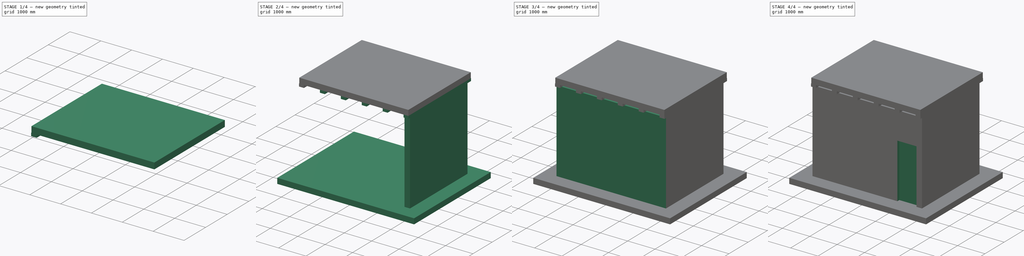
[diagram: build sequence overview — one tinted view per stage of 4, left to right]
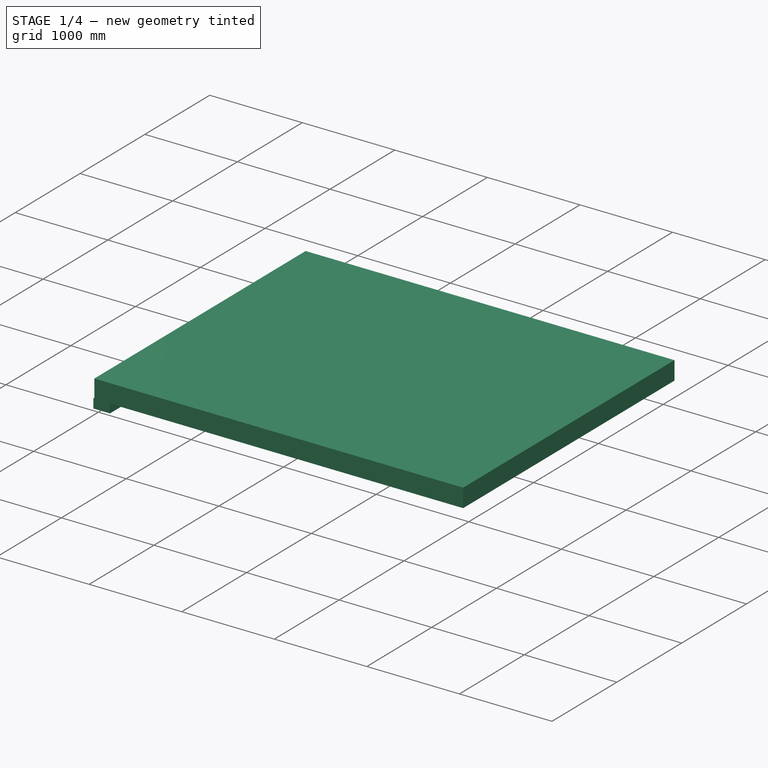
[diagram: stage 1 of 4 — iso view after this stage's code; geometry added in this stage tinted green]
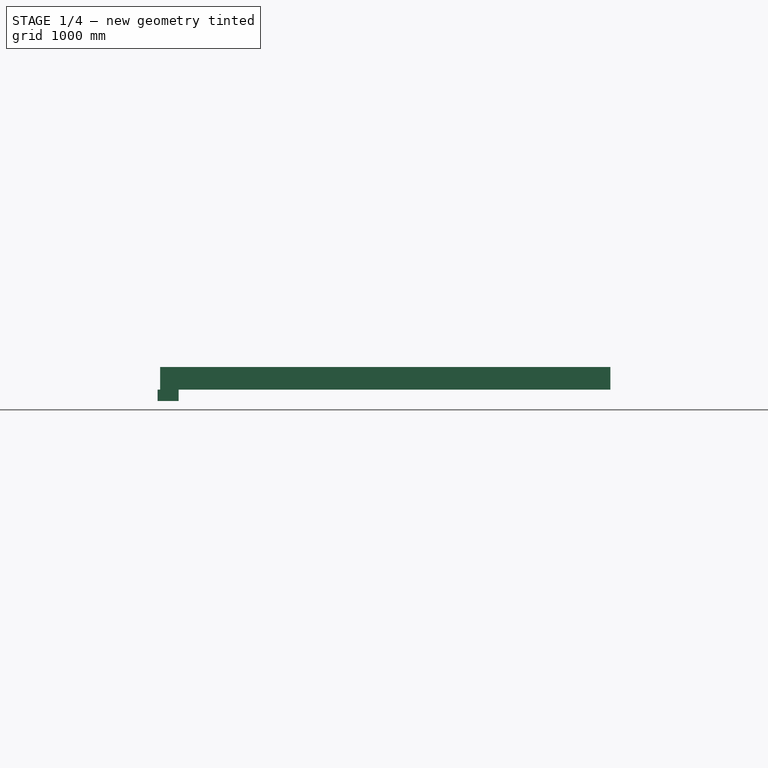
[diagram: stage 1 of 4 — front view after this stage's code; geometry added in this stage tinted green]
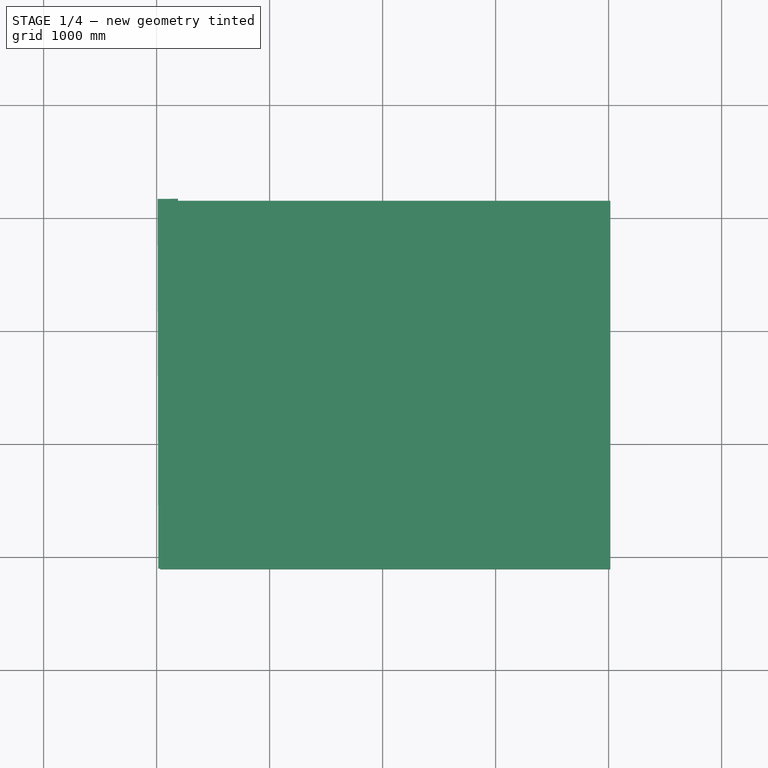
[diagram: stage 1 of 4 — top view after this stage's code; geometry added in this stage tinted green]
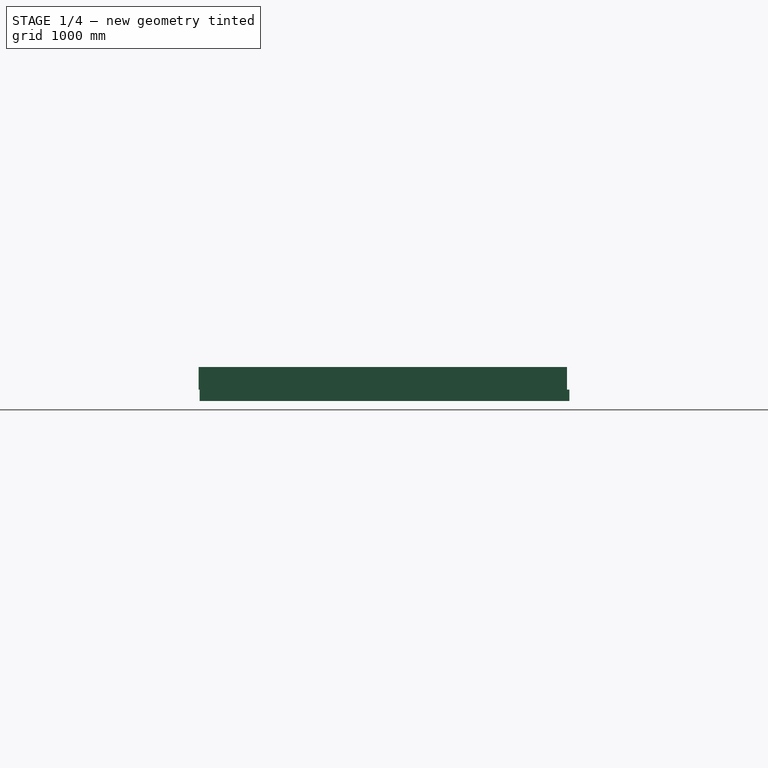
[diagram: stage 1 of 4 — right view after this stage's code; geometry added in this stage tinted green]
FCSTD DOCUMENT  (FreeCAD 0.21R33771 (Git))
Label: bim house mannual
License: All rights reserved
LicenseURL: http://en.wikipedia.org/wiki/All_rights_reserved
objects: Part::FeaturePython×9, Part::Part2DObjectPython×6, Sketcher::SketchObject×1, Part::MultiFuse×1
note: 16 computed .brp shape members not serialized (recipe doc carries the construction recipe); baked Part::Feature solids carry a one-line shape summary decoded from their .brp

FEATURE [Part::FeaturePython] Structure001  label="Beam"  # Arch/BIM 7 (typed FeaturePython)
  BaseMirror = false
  BaseOffsetX = 0
  BaseOffsetY = 0
  BasePerpendicularToTool = false
  BaseRotation = 0
  ComputedLength = 3271.55
  FaceMaker = 0
  Height = 100
  HorizontalArea = 588879
  IfcData = attributes={"GlobalId": {"name": "GlobalId", "type": "IfcGloballyUniqueId", "is_enum": false, "enum_values": []}, "Description": {"... (+475 chars omitted),+1 more (map truncated)
  IfcType = 7
  Length = 3271.55
  MoveBase = false
  MoveWithHost = false
  Nodes = (2) [(-6.47112e-32,-5.68434e-16,-3.88578e-16),(3271.55,-5.68434e-16,-7.26819e-13)]
  NodesOffset = 0
  Normal = (0,0,0)
  PerimeterLength = 6903.1
  Placement = pos=(105,-100,3050) rot=(0,0,1;1.57272rad)
  PredefinedType = 0
  ToolOffsetFirst = 0
  ToolOffsetLast = 0
  VerticalArea = 690310
  Width = 180
FEATURE [Part::Part2DObjectPython] Rectangle001  # Draft 2D object (typed FeaturePython)
  Area = 1.29869e+07
  ChamferSize = 0
  Columns = 1
  FilletRadius = 0
  Height = 3259.7
  Length = 3984.08
  MakeFace = true
  Placement = pos=(31.4911,-108.211,0) rot=(0,0,1;0rad)
  Rows = 1
FEATURE [Part::FeaturePython] Structure002  # Arch/BIM 13 (typed FeaturePython)
  Base = -> Rectangle001
  BaseMirror = false
  BaseOffsetX = 0
  BaseOffsetY = 0
  BasePerpendicularToTool = false
  BaseRotation = 0
  ComputedLength = 200
  FaceMaker = 0
  Height = 200
  HorizontalArea = 1.29869e+07
  IfcData = attributes={"GlobalId": {"name": "GlobalId", "type": "IfcGloballyUniqueId", "is_enum": false, "enum_values": []}, "Description": {"... (+484 chars omitted),+1 more (map truncated)
  IfcType = 13
  Length = 0
  MoveBase = false
  MoveWithHost = false
  Nodes = (2) [(2023.53,1521.64,0),(2023.53,1521.64,200)]
  NodesOffset = 0
  Normal = (0,0,0)
  PerimeterLength = 14487.6
  Placement = pos=(0,0,3100) rot=(0,0,1;0rad)
  PredefinedType = 0
  ToolOffsetFirst = 0
  ToolOffsetLast = 0
  VerticalArea = 2.89751e+06
  Width = 180
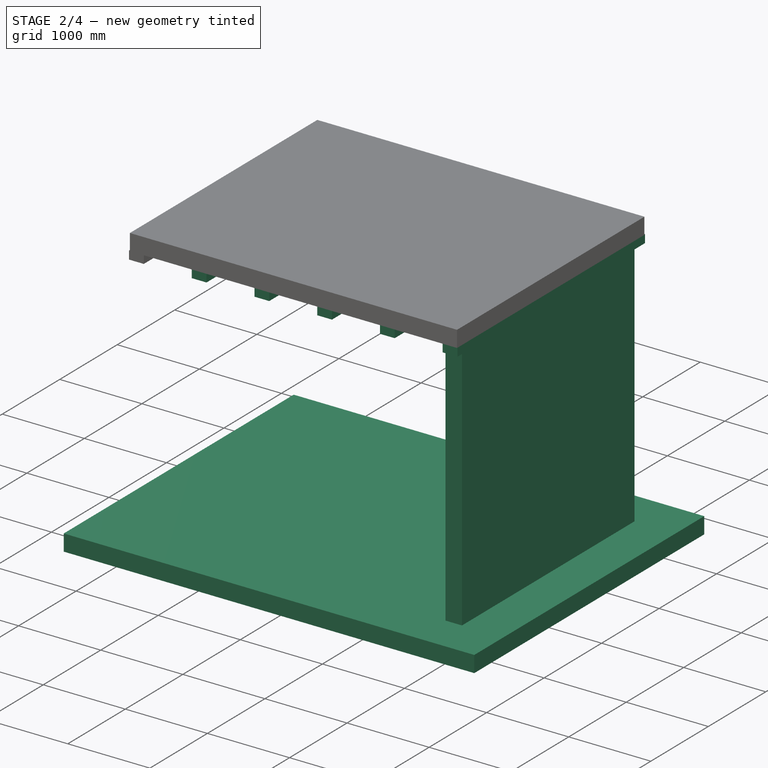
[diagram: stage 2 of 4 — iso view after this stage's code; geometry added in this stage tinted green]
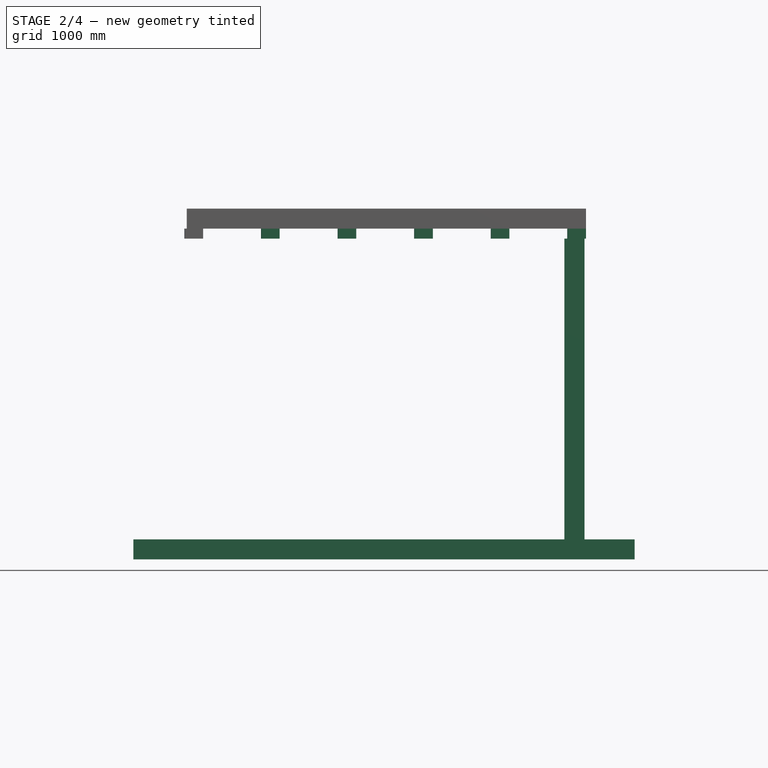
[diagram: stage 2 of 4 — front view after this stage's code; geometry added in this stage tinted green]
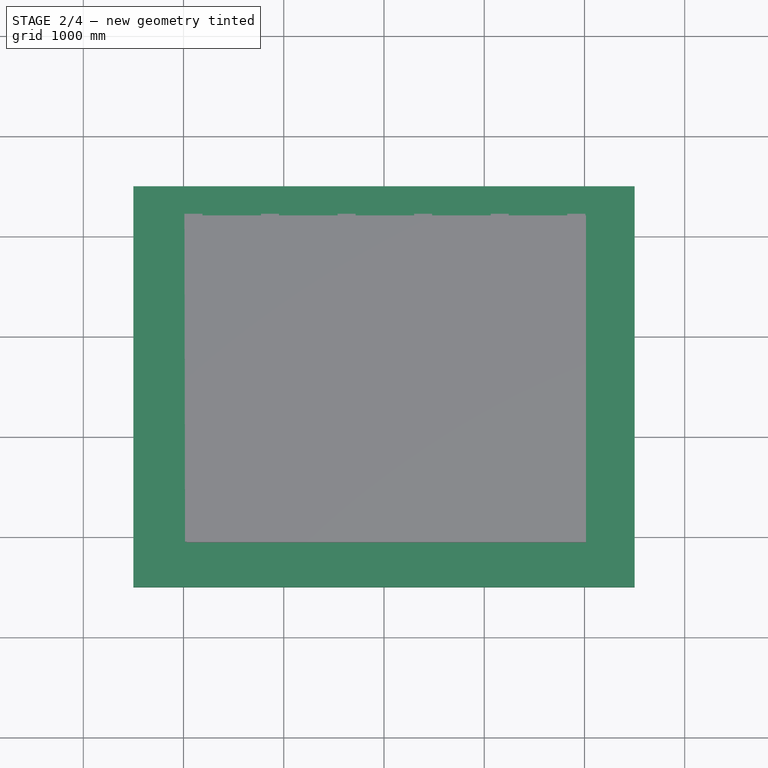
[diagram: stage 2 of 4 — top view after this stage's code; geometry added in this stage tinted green]
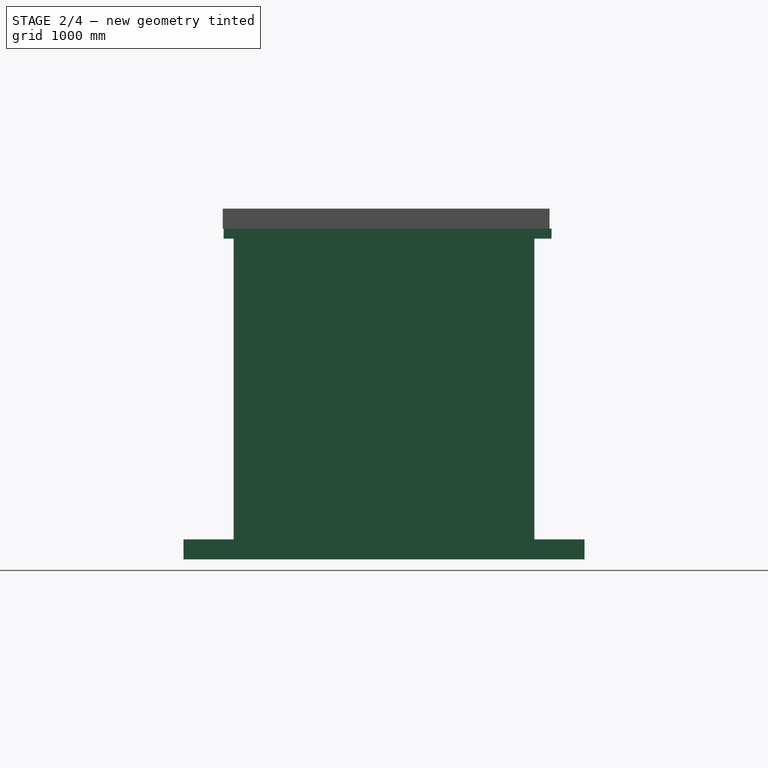
[diagram: stage 2 of 4 — right view after this stage's code; geometry added in this stage tinted green]
FEATURE [Part::FeaturePython] Wall002  # Arch/BIM 166 (typed FeaturePython)
  Align = 0
  Area = 9000000
  Base = -> Line002
  BlockHeight = 0
  BlockLength = 0
  CountBroken = 0
  CountEntire = 0
  Face = 0
  Height = 3000
  HorizontalArea = 600000
  IfcData = attributes={"GlobalId": {"name": "GlobalId", "type": "IfcGloballyUniqueId", "is_enum": false, "enum_values": []}, "Description": {"... (+533 chars omitted),+1 more (map truncated)
  IfcType = 166
  Joint = 0
  Length = 3000
  MakeBlocks = false
  MoveBase = false
  MoveWithHost = false
  Normal = (0,0,0)
  OffsetFirst = 0
  OffsetSecond = 0
  PerimeterLength = 6400
  PredefinedType = 0
  VerticalArea = 19200000
  Width = 200
FEATURE [Part::Part2DObjectPython] Rectangle  # Draft 2D object (typed FeaturePython)
  Area = 20000000
  ChamferSize = 0
  Columns = 1
  FilletRadius = 0
  Height = 4000
  Length = 5000
  MakeFace = true
  Placement = pos=(-500,-500,0) rot=(0,0,1;0rad)
  Rows = 1
FEATURE [Part::FeaturePython] Structure  # Arch/BIM 13 (typed FeaturePython)
  Base = -> Rectangle
  BaseMirror = false
  BaseOffsetX = 0
  BaseOffsetY = 0
  BasePerpendicularToTool = false
  BaseRotation = 0
  ComputedLength = 200
  FaceMaker = 0
  Height = 200
  HorizontalArea = 20000000
  IfcData = attributes={"GlobalId": {"name": "GlobalId", "type": "IfcGloballyUniqueId", "is_enum": false, "enum_values": []}, "Description": {"... (+484 chars omitted),+1 more (map truncated)
  IfcType = 13
  Length = 0
  MoveBase = false
  MoveWithHost = false
  Nodes = (2) [(2000,1500,0),(2000,1500,-200)]
  NodesOffset = 0
  Normal = (0,0,-1)
  PerimeterLength = 18000
  PredefinedType = 0
  ToolOffsetFirst = 0
  ToolOffsetLast = 0
  VerticalArea = 3600000
  Width = 100
FEATURE [Part::FeaturePython] Array  # Draft array (typed FeaturePython)
  AlwaysSyncPlacement = false
  Angle = 360
  ArrayType = 0
  Axis = (0,0,1)
  Base = -> Structure001
  Center = (0,0,0)
  Count = 6
  ExpandArray = false
  Fuse = false
  IntervalAxis = (0,0,0)
  IntervalX = (764,0,0)
  IntervalY = (0,100,0)
  IntervalZ = (0,0,100)
  NumberCircles = 3
  NumberPolar = 5
  NumberX = 6
  NumberY = 1
  NumberZ = 1
  PlacementList = 6 placements: arithmetic series from (105,-100,3050) step (764,0,0) to (3925,-100,3050)
  RadialDistance = 50
  ScaleList = (6) [(1,1,1),(1,1,1),(1,1,1),(1,1,1),(1,1,1),(1,1,1)]
  Symmetry = 1
  TangentialDistance = 25
  expr: .IntervalX.x = 764 mm
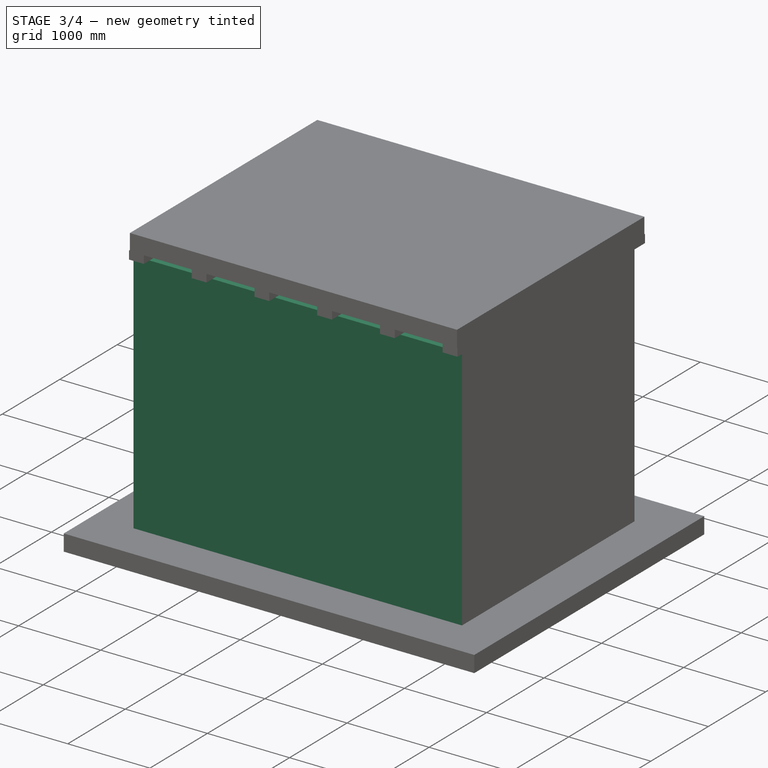
[diagram: stage 3 of 4 — iso view after this stage's code; geometry added in this stage tinted green]
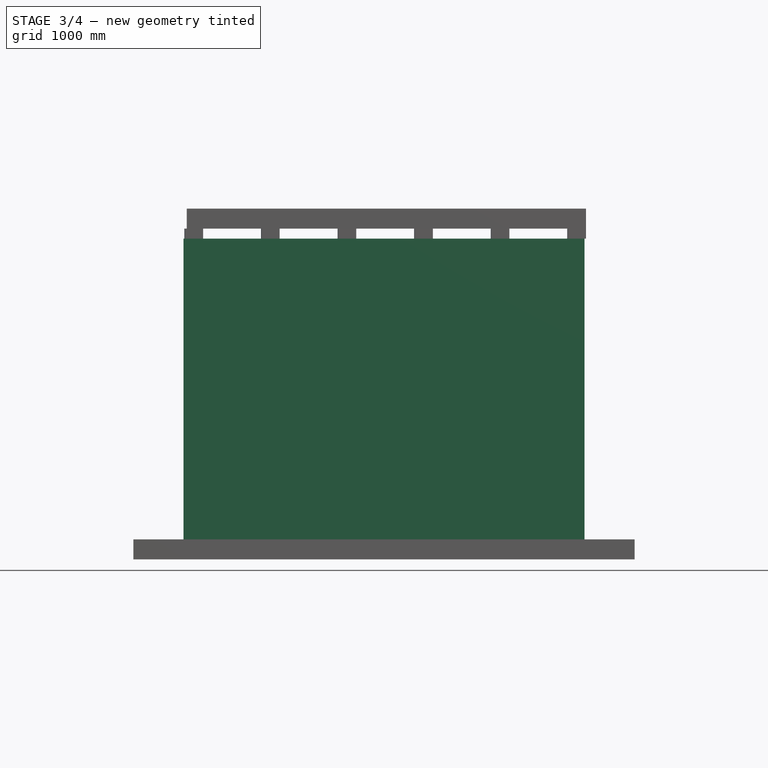
[diagram: stage 3 of 4 — front view after this stage's code; geometry added in this stage tinted green]
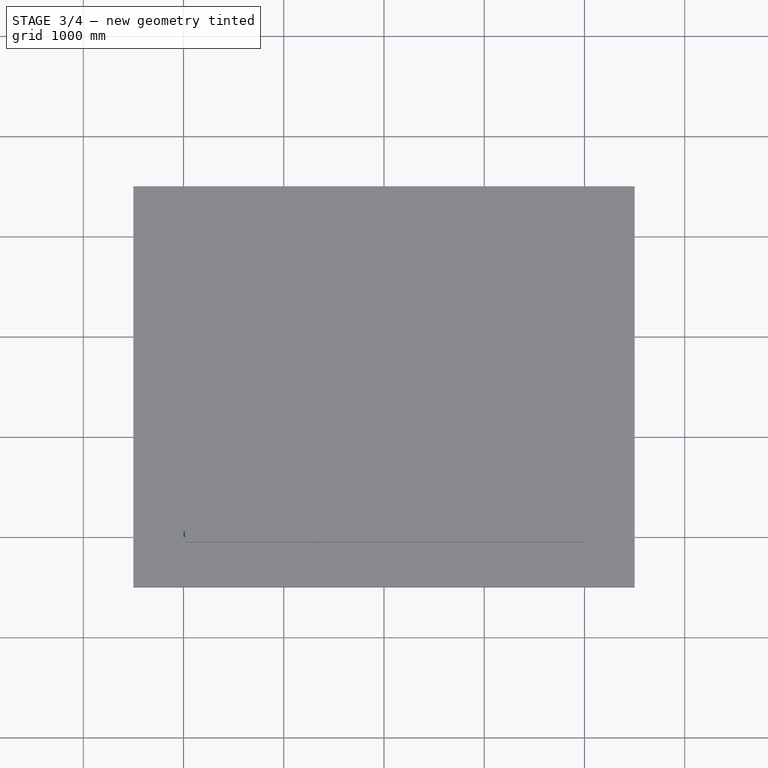
[diagram: stage 3 of 4 — top view after this stage's code; geometry added in this stage tinted green]
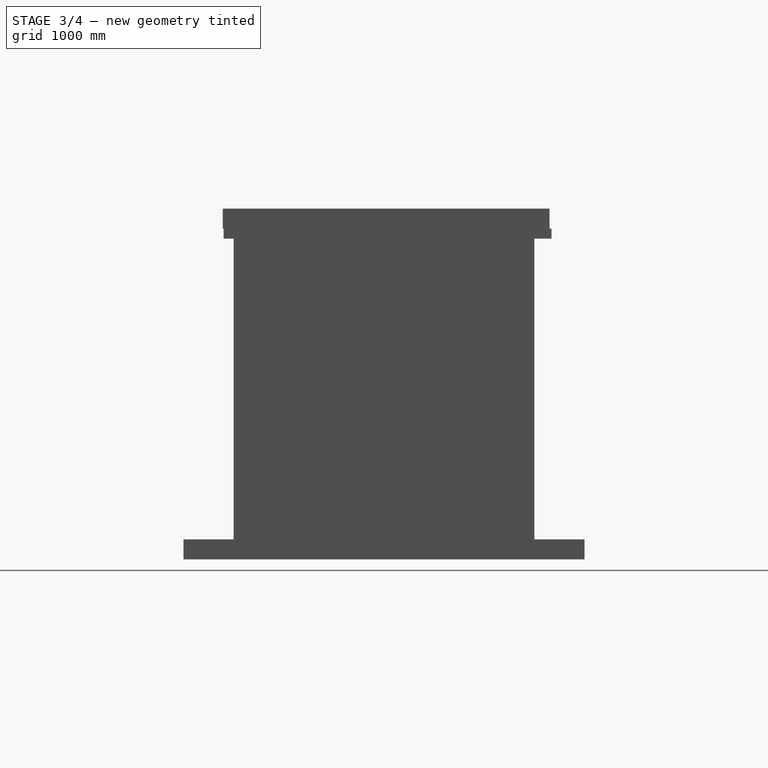
[diagram: stage 3 of 4 — right view after this stage's code; geometry added in this stage tinted green]
FEATURE [Part::Part2DObjectPython] Line  # Draft 2D object (typed FeaturePython)
  Area = 0
  ChamferSize = 0
  Closed = false
  End = (0,3000,0)
  FilletRadius = 0
  Length = 3000
  MakeFace = true
  Points = (2) [(0,0,0),(0,3000,0)]
  Start = (0,0,0)
  Subdivisions = 0
FEATURE [Part::Part2DObjectPython] Line001  # Draft 2D object (typed FeaturePython)
  Area = 0
  ChamferSize = 0
  Closed = false
  End = (4000,3000,0)
  FilletRadius = 0
  Length = 4000
  MakeFace = true
  Placement = pos=(0,3000,0) rot=(0,0,1;0rad)
  Points = (2) [(0,0,0),(4000,0,0)]
  Start = (0,3000,0)
  Subdivisions = 0
FEATURE [Part::Part2DObjectPython] Line002  # Draft 2D object (typed FeaturePython)
  Area = 0
  ChamferSize = 0
  Closed = false
  End = (4000,0,0)
  FilletRadius = 0
  Length = 3000
  MakeFace = true
  Placement = pos=(4000,3000,0) rot=(0,0,1;0rad)
  Points = (2) [(0,0,0),(0,-3000,0)]
  Start = (4000,3000,0)
  Subdivisions = 0
FEATURE [Part::Part2DObjectPython] Line003  # Draft 2D object (typed FeaturePython)
  Area = 0
  ChamferSize = 0
  Closed = false
  End = (0,0,0)
  FilletRadius = 0
  Length = 4000
  MakeFace = true
  Placement = pos=(4000,0,0) rot=(0,0,1;0rad)
  Points = (2) [(0,0,0),(-4000,0,0)]
  Start = (4000,0,0)
  Subdivisions = 0
FEATURE [Part::FeaturePython] Wall  # Arch/BIM 166 (typed FeaturePython)
  Align = 0
  Area = 9000000
  Base = -> Line
  BlockHeight = 0
  BlockLength = 0
  CountBroken = 0
  CountEntire = 0
  Face = 0
  Height = 3000
  HorizontalArea = 600000
  IfcData = attributes={"GlobalId": {"name": "GlobalId", "type": "IfcGloballyUniqueId", "is_enum": false, "enum_values": []}, "Description": {"... (+533 chars omitted),+1 more (map truncated)
  IfcType = 166
  Joint = 0
  Length = 3000
  MakeBlocks = false
  MoveBase = false
  MoveWithHost = false
  Normal = (0,0,0)
  OffsetFirst = 0
  OffsetSecond = 0
  PerimeterLength = 6400
  PredefinedType = 0
  VerticalArea = 19200000
  Width = 200
FEATURE [Part::FeaturePython] Wall001  # Arch/BIM 166 (typed FeaturePython)
  Align = 0
  Area = 12000000
  Base = -> Line001
  BlockHeight = 0
  BlockLength = 0
  CountBroken = 0
  CountEntire = 0
  Face = 0
  Height = 3000
  HorizontalArea = 800000
  IfcData = attributes={"GlobalId": {"name": "GlobalId", "type": "IfcGloballyUniqueId", "is_enum": false, "enum_values": []}, "Description": {"... (+533 chars omitted),+1 more (map truncated)
  IfcType = 166
  Joint = 0
  Length = 4000
  MakeBlocks = false
  MoveBase = false
  MoveWithHost = false
  Normal = (0,0,0)
  OffsetFirst = 0
  OffsetSecond = 0
  PerimeterLength = 8400
  PredefinedType = 0
  VerticalArea = 2.52e+07
  Width = 200
FEATURE [Part::FeaturePython] Wall003  # Arch/BIM 166 (typed FeaturePython)
  Additions = -> [Wall,Wall001,Wall002]
  Align = 0
  Area = 12000000
  Base = -> Line003
  BlockHeight = 0
  BlockLength = 0
  CountBroken = 0
  CountEntire = 0
  Face = 0
  Height = 3000
  HorizontalArea = 2.64e+06
  IfcData = attributes={"GlobalId": {"name": "GlobalId", "type": "IfcGloballyUniqueId", "is_enum": false, "enum_values": []}, "Description": {"... (+533 chars omitted),+1 more (map truncated)
  IfcType = 166
  Joint = 0
  Length = 4000
  MakeBlocks = false
  MoveBase = false
  MoveWithHost = false
  Normal = (0,0,0)
  OffsetFirst = 0
  OffsetSecond = 0
  PerimeterLength = 14000
  PredefinedType = 0
  VerticalArea = 76680000
  Width = 200
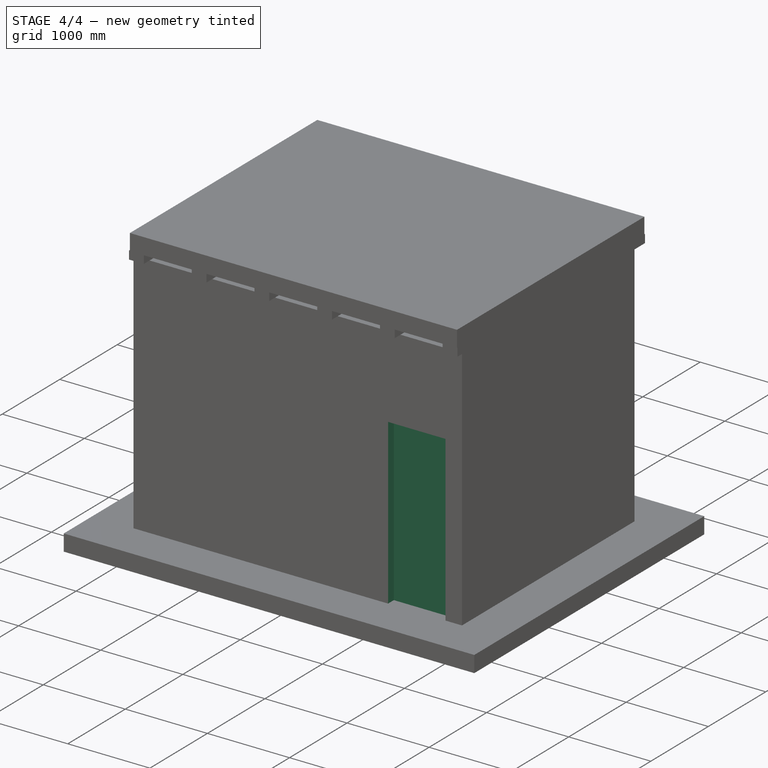
[diagram: stage 4 of 4 — iso view after this stage's code; geometry added in this stage tinted green]
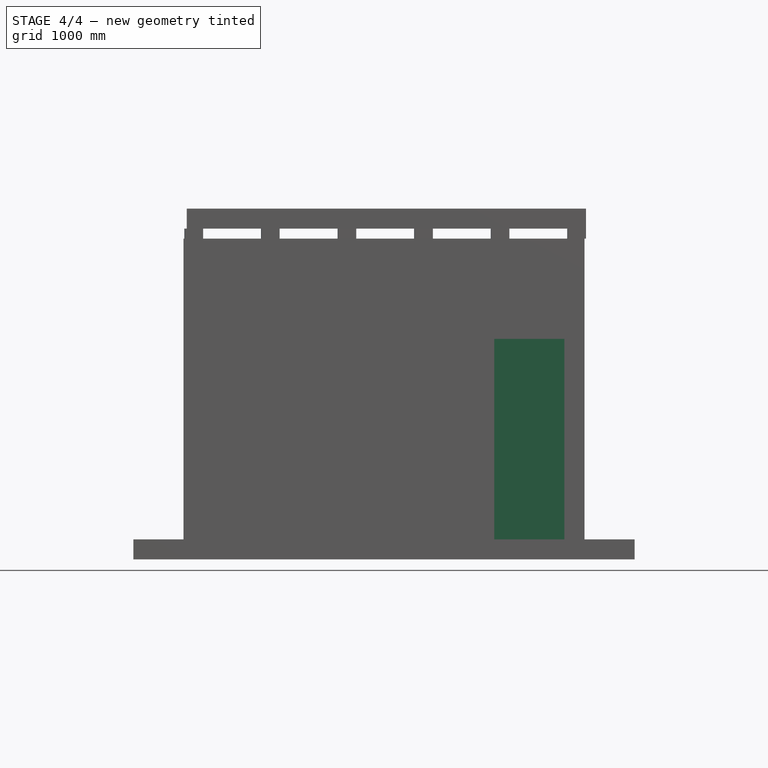
[diagram: stage 4 of 4 — front view after this stage's code; geometry added in this stage tinted green]
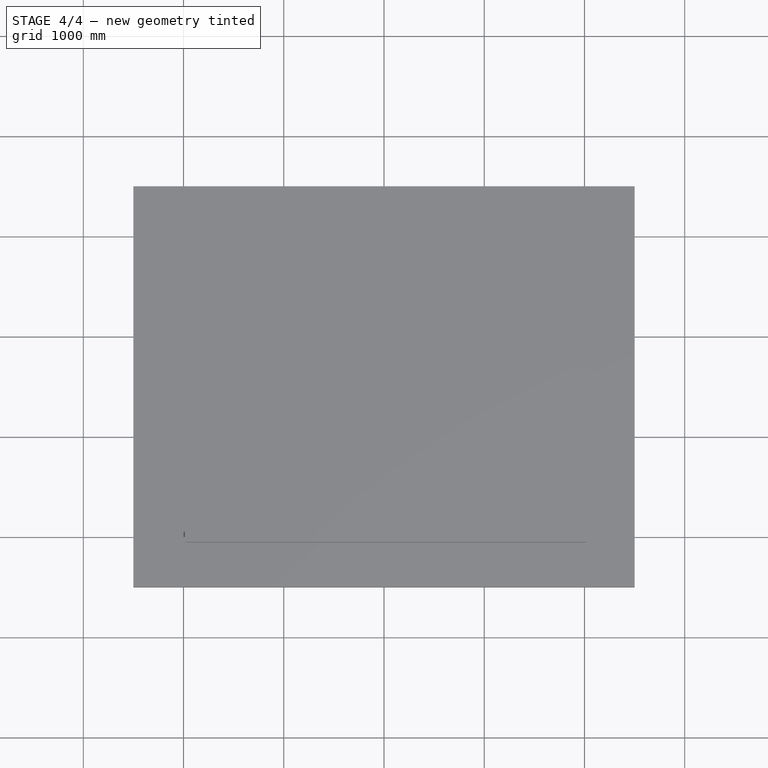
[diagram: stage 4 of 4 — top view after this stage's code; geometry added in this stage tinted green]
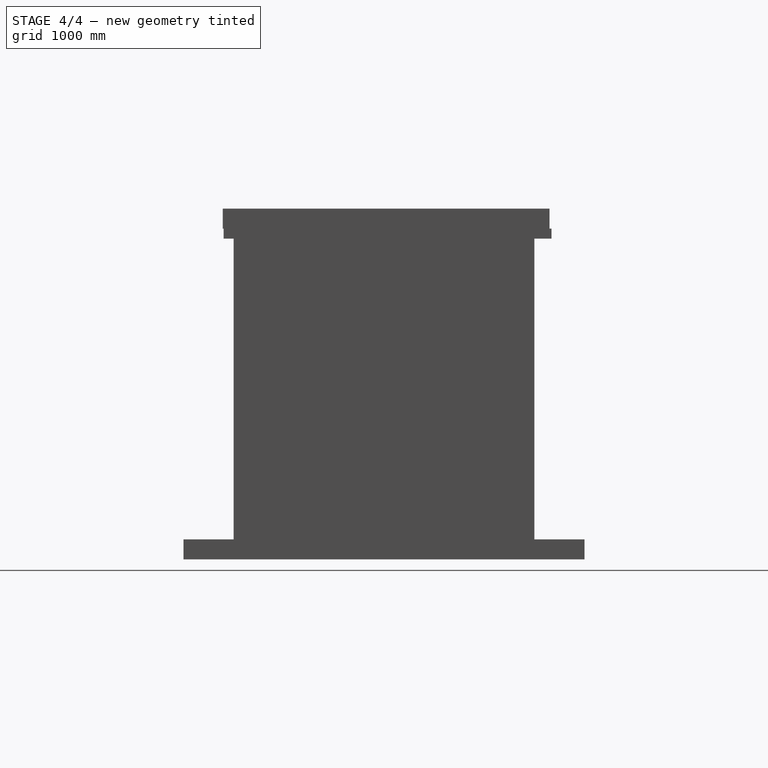
[diagram: stage 4 of 4 — right view after this stage's code; geometry added in this stage tinted green]
FEATURE [Sketcher::SketchObject] Sketch004
  FullyConstrained = true
  Placement = pos=(3000,0,0) rot=(1,0,0;1.5708rad)
  sketch-geometry (8):
    g0: LineSegment StartX=0 StartY=0 StartZ=0 EndX=900 EndY=0 EndZ=0
    g1: LineSegment StartX=900 StartY=0 StartZ=0 EndX=900 EndY=2100 EndZ=0
    g2: LineSegment StartX=900 StartY=2100 StartZ=0 EndX=0 EndY=2100 EndZ=0
    g3: LineSegment StartX=0 StartY=2100 StartZ=0 EndX=0 EndY=0 EndZ=0
    g4: LineSegment StartX=100 StartY=0 StartZ=0 EndX=800 EndY=0 EndZ=0
    g5: LineSegment StartX=800 StartY=0 StartZ=0 EndX=800 EndY=2000 EndZ=0
    g6: LineSegment StartX=800 StartY=2000 StartZ=0 EndX=100 EndY=2000 EndZ=0
    g7: LineSegment StartX=100 StartY=2000 StartZ=0 EndX=100 EndY=0 EndZ=0
  constraints (23):
    c: Coincident(g0,g1)
    c: Coincident(g1,g2)
    c: Coincident(g2,g3)
    c: Coincident(g3,g0)
    c: Horizontal(g0)
    c: Horizontal(g2)
    c: Vertical(g1)
    c: Vertical(g3)
    c: Coincident(g4,g5)
    c: Coincident(g5,g6)
    c: Coincident(g6,g7)
    c: Coincident(g7,g4)
    c: Horizontal(g4)
    c: Horizontal(g6)
    c: Vertical(g5)
    c: Vertical(g7)
    c: DistanceY(g1) = 2100  'Height'
    c: DistanceX(g0) = 900  'Width'
    c: DistanceY(g6,g2) = 100  'Frame1'
    c: DistanceX(g2,g6) = 100  'Frame2'
    c: DistanceX(g4,g0) = 100  'Frame3'
    c: DistanceY(g0,g4) = 0
    c: Coincident(g0,g-1)
FEATURE [Part::FeaturePython] Window  label="Door"  # Arch/BIM 41 (typed FeaturePython)
  Area = 1890000
  Base = -> Sketch004
  Frame = 100
  Height = 2100
  HoleDepth = 0
  HoleWire = 0
  HorizontalArea = 0
  Hosts = -> [Wall003]
  IfcData = attributes={"GlobalId": {"name": "GlobalId", "type": "IfcGloballyUniqueId", "is_enum": false, "enum_values": []}, "Description": {"... (+1933 chars omitted),+1 more (map truncated)
  IfcType = 41
  LouvreSpacing = 0
  LouvreWidth = 0
  MoveBase = false
  MoveWithHost = true
  Normal = (0,1,-2e-16)
  Opening = 0
  OperationType = 0
  OverallHeight = 2100
  OverallWidth = 900
  PerimeterLength = 0
  PredefinedType = 0
  Preset = 6
  SymbolElevation = false
  SymbolPlan = false
  VerticalArea = 0
  Width = 900
  WindowParts = OuterFrame | Frame | Wire0,Wire1 | 100.0+V | 0.00+V | Door | Solid panel | Wire1,Edge8,Mode1 | 100.0 | 100.0+V
  expr: OverallHeight = .Height.Value
  expr: OverallWidth = .Width.Value
FEATURE [Part::MultiFuse] Fusion
  Shapes = -> [Wall003,Structure,Array,Structure002]
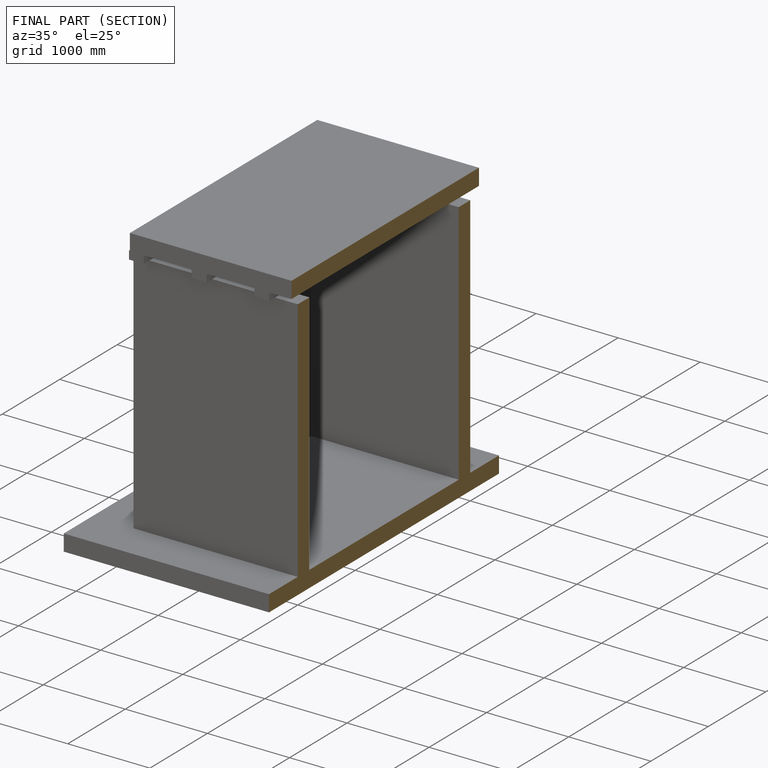
[diagram: finished part — half-section view (interior)]
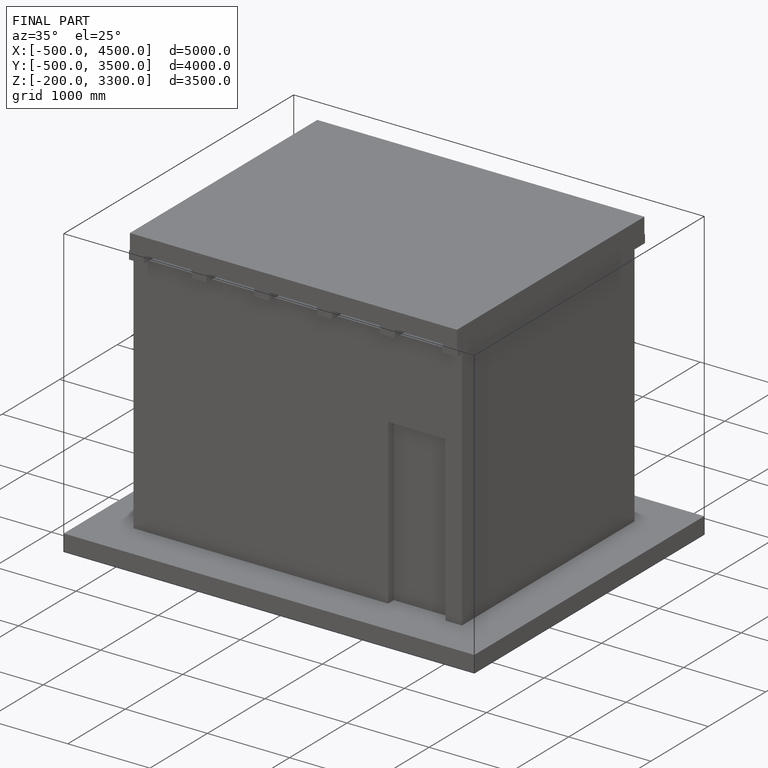
[diagram: finished part — iso view with bounding-box wireframe]
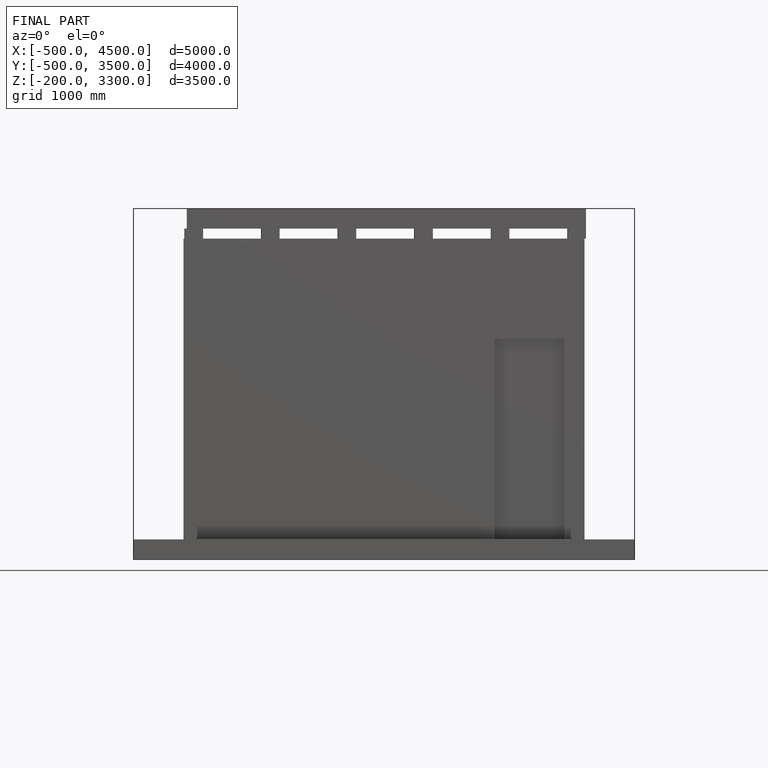
[diagram: finished part — front view with bounding-box wireframe]
